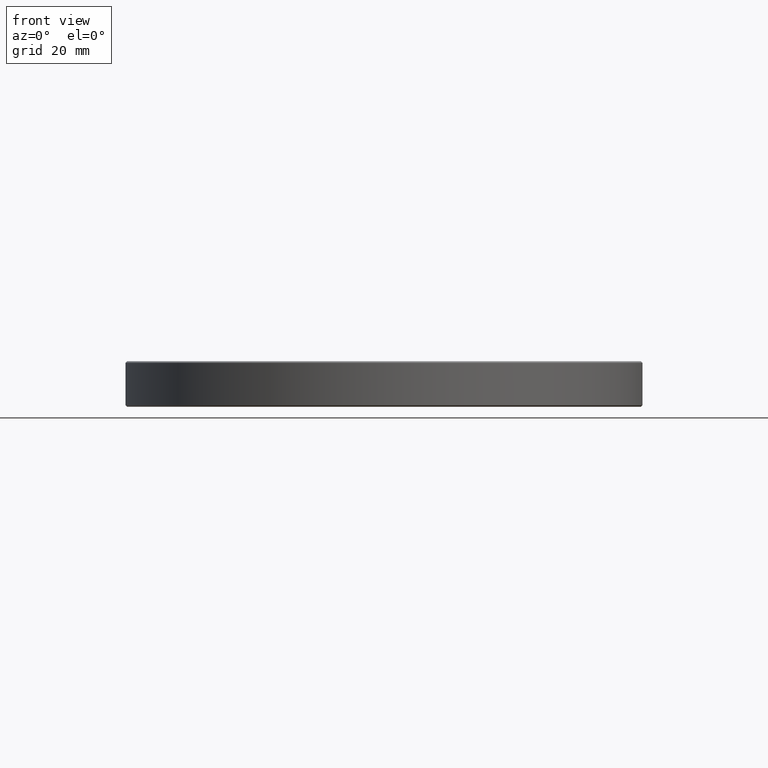
[diagram: clean part render]
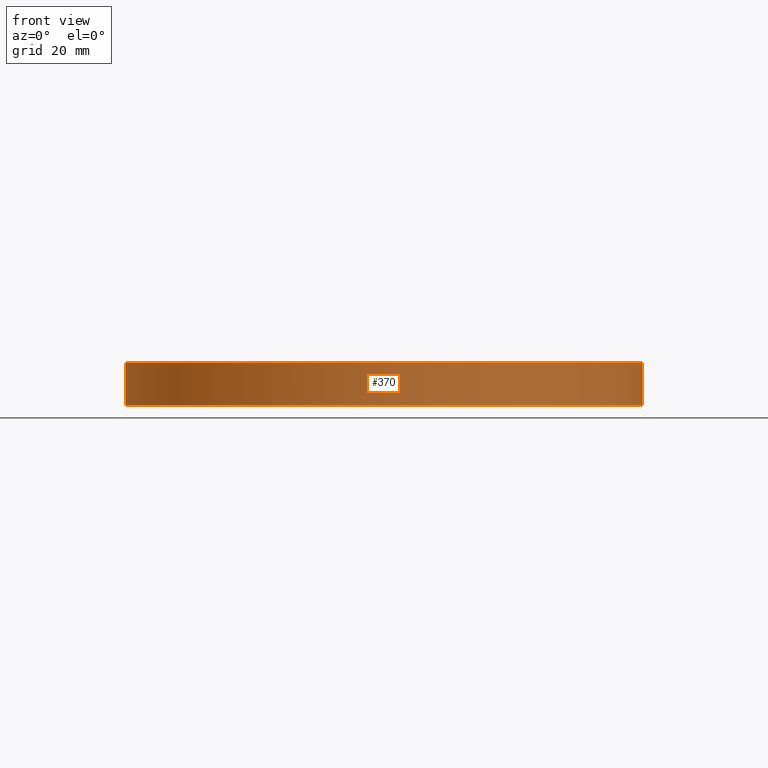
[diagram: same view with one face highlighted and labeled with its STEP entity id]
A machine part, front view. The second image highlights one B-rep face of the part: STEP entity #370.
In plain terms, the highlighted cylindrical surface (partial cylindrical patch) has radius 85 mm, axis along (-0, -0, -1).
Its self-contained STEP definition (entity closure, byte-faithful):
#11 = DIRECTION ( 'NONE',  ( -0.000000000000000000, -0.000000000000000000, -1.000000000000000000 ) ) ;
#29 = CARTESIAN_POINT ( 'NONE',  ( 85.00000000000001421, 1.040949779275250495E-14, 0.5000000000000004441 ) ) ;
#36 = VECTOR ( 'NONE', #11, 1000.000000000000000 ) ;
#56 = DIRECTION ( 'NONE',  ( 1.000000000000000000, 0.000000000000000000, 0.000000000000000000 ) ) ;
#108 = ORIENTED_EDGE ( 'NONE', *, *, #451, .T. ) ;
#134 = AXIS2_PLACEMENT_3D ( 'NONE', #264, #178, #56 ) ;
#171 = VERTEX_POINT ( 'NONE', #228 ) ;
#178 = DIRECTION ( 'NONE',  ( 0.000000000000000000, 0.000000000000000000, -1.000000000000000000 ) ) ;
#207 = CARTESIAN_POINT ( 'NONE',  ( 0.000000000000000000, 0.000000000000000000, 0.5000000000000004441 ) ) ;
#227 = CARTESIAN_POINT ( 'NONE',  ( 85.00000000000001421, 1.040949779275250495E-14, 14.49999999999995737 ) ) ;
#228 = CARTESIAN_POINT ( 'NONE',  ( -85.00000000000001421, 0.000000000000000000, 0.5000000000000004441 ) ) ;
#251 = DIRECTION ( 'NONE',  ( -0.000000000000000000, -0.000000000000000000, -1.000000000000000000 ) ) ;
#264 = CARTESIAN_POINT ( 'NONE',  ( 0.000000000000000000, 0.000000000000000000, 14.49999999999995737 ) ) ;
#285 = AXIS2_PLACEMENT_3D ( 'NONE', #207, #295, #479 ) ;
#295 = DIRECTION ( 'NONE',  ( -0.000000000000000000, -0.000000000000000000, 1.000000000000000000 ) ) ;
#296 = VERTEX_POINT ( 'NONE', #29 ) ;
#311 = ORIENTED_EDGE ( 'NONE', *, *, #531, .F. ) ;
#323 = VECTOR ( 'NONE', #493, 1000.000000000000000 ) ;
#344 = VERTEX_POINT ( 'NONE', #518 ) ;
#352 = DIRECTION ( 'NONE',  ( -1.000000000000000000, 0.000000000000000000, 0.000000000000000000 ) ) ;
#370 = ADVANCED_FACE ( 'NONE', ( #389 ), #525, .T. ) ;
#389 = FACE_OUTER_BOUND ( 'NONE', #519, .T. ) ;
#395 = CARTESIAN_POINT ( 'NONE',  ( 0.000000000000000000, 0.000000000000000000, 15.00000000000000000 ) ) ;
#407 = LINE ( 'NONE', #538, #36 ) ;
#413 = EDGE_CURVE ( 'NONE', #171, #296, #486, .T. ) ;
#451 = EDGE_CURVE ( 'NONE', #472, #344, #460, .T. ) ;
#458 = AXIS2_PLACEMENT_3D ( 'NONE', #395, #251, #352 ) ;
#460 = CIRCLE ( 'NONE', #134, 85.00000000000001421 ) ;
#472 = VERTEX_POINT ( 'NONE', #227 ) ;
#479 = DIRECTION ( 'NONE',  ( 1.000000000000000000, 0.000000000000000000, 0.000000000000000000 ) ) ;
#480 = ORIENTED_EDGE ( 'NONE', *, *, #514, .T. ) ;
#486 = CIRCLE ( 'NONE', #285, 85.00000000000001421 ) ;
#493 = DIRECTION ( 'NONE',  ( -0.000000000000000000, -0.000000000000000000, -1.000000000000000000 ) ) ;
#500 = CARTESIAN_POINT ( 'NONE',  ( 85.00000000000001421, 1.040949779275250495E-14, 15.00000000000000000 ) ) ;
#509 = ORIENTED_EDGE ( 'NONE', *, *, #413, .T. ) ;
#514 = EDGE_CURVE ( 'NONE', #344, #171, #407, .T. ) ;
#518 = CARTESIAN_POINT ( 'NONE',  ( -85.00000000000001421, 0.000000000000000000, 14.49999999999995737 ) ) ;
#519 = EDGE_LOOP ( 'NONE', ( #311, #108, #480, #509 ) ) ;
#525 = CYLINDRICAL_SURFACE ( 'NONE', #458, 85.00000000000001421 ) ;
#531 = EDGE_CURVE ( 'NONE', #472, #296, #541, .T. ) ;
#538 = CARTESIAN_POINT ( 'NONE',  ( -85.00000000000001421, 0.000000000000000000, 15.00000000000000000 ) ) ;
#541 = LINE ( 'NONE', #500, #323 ) ;